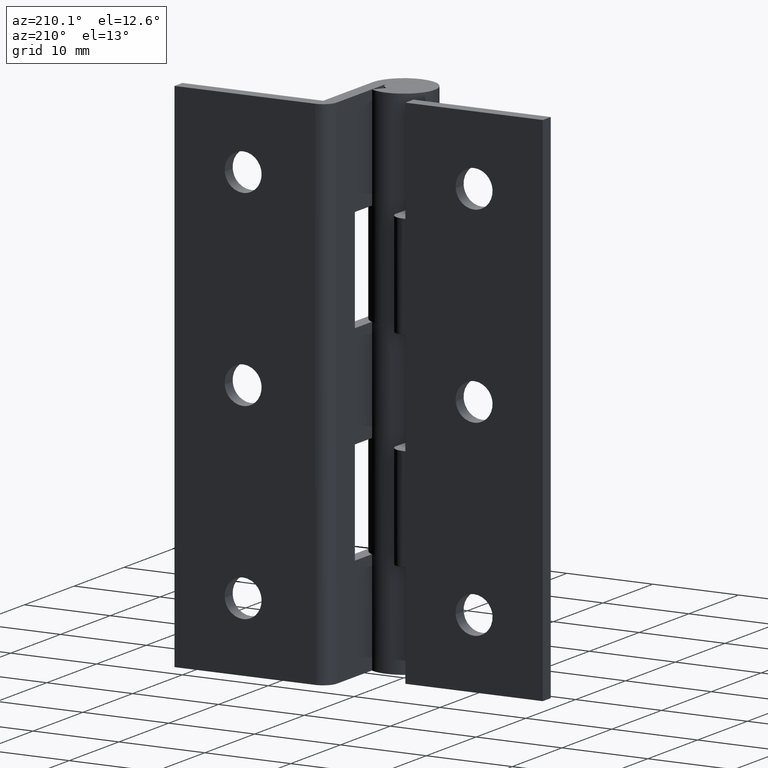
[diagram: clean part render]
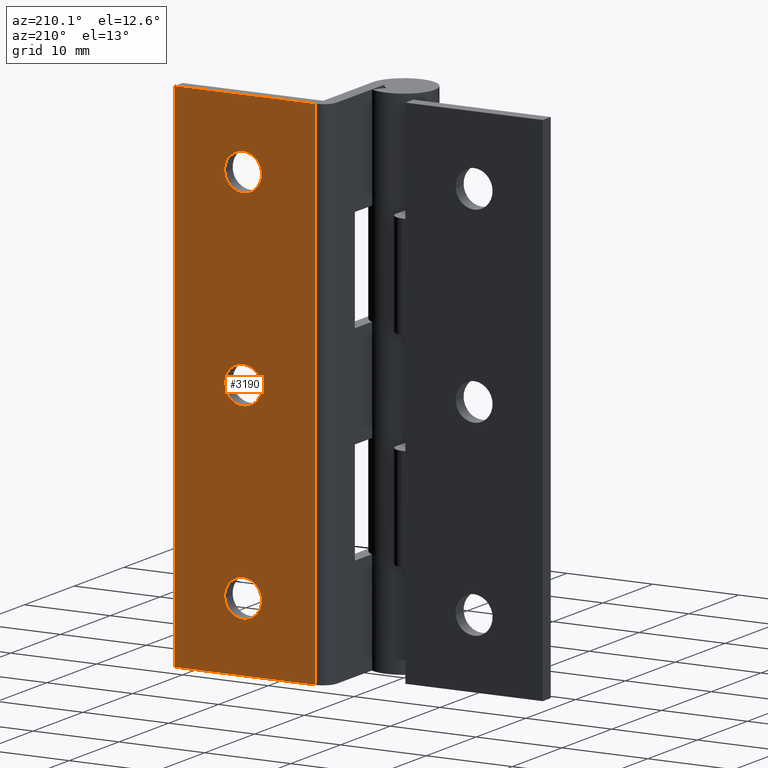
[diagram: same view with one face highlighted and labeled with its STEP entity id]
A machine part, auxiliary view. The second image highlights one B-rep face of the part: STEP entity #3190.
In plain terms, the highlighted face is a freeform B-spline surface patch.
Its self-contained STEP definition (entity closure, byte-faithful):
#1859=CARTESIAN_POINT('',(9.856635732478805,11.599998999999960,52.168687055877513));
#1860=VERTEX_POINT('',#1859);
#1866=CARTESIAN_POINT('',(12.000008000000101,11.599998999999960,54.149999999999999));
#1867=VERTEX_POINT('',#1866);
#1868=CARTESIAN_POINT('',(12.000008000000101,11.599998999999960,54.149999999999999));
#1869=CARTESIAN_POINT('',(10.012568443051496,11.599998999999961,54.150000000000013));
#1870=CARTESIAN_POINT('',(9.856635732478805,11.599998999999961,52.168687055877520));
#1878=(BOUNDED_CURVE()B_SPLINE_CURVE(2,(#1868,#1869,#1870),.UNSPECIFIED.,.F.,.U.)B_SPLINE_CURVE_WITH_KNOTS((3,3),(0.0,0.236331300622746),.UNSPECIFIED.)CURVE()GEOMETRIC_REPRESENTATION_ITEM()RATIONAL_B_SPLINE_CURVE((1.0,0.723120658616937,0.969723356150902))REPRESENTATION_ITEM(''));
#1879=EDGE_CURVE('',#1867,#1860,#1878,.T.);
#1881=CARTESIAN_POINT('',(14.143380267521390,11.599998999999960,51.831312944122487));
#1882=VERTEX_POINT('',#1881);
#1883=CARTESIAN_POINT('',(14.143380267521396,11.599998999999958,51.831312944122494));
#1884=CARTESIAN_POINT('',(14.150008000000096,11.599998999999961,51.915526269870576));
#1885=CARTESIAN_POINT('',(14.150008000000099,11.599998999999960,52.0));
#1886=CARTESIAN_POINT('',(14.150008000000103,11.599998999999960,54.150000000000006));
#1887=CARTESIAN_POINT('',(12.000008000000101,11.599998999999960,54.149999999999999));
#1895=(BOUNDED_CURVE()B_SPLINE_CURVE(2,(#1883,#1884,#1885,#1886,#1887),.UNSPECIFIED.,.F.,.U.)B_SPLINE_CURVE_WITH_KNOTS((3,2,3),(0.736331300622745,0.750000000000000,1.0),.UNSPECIFIED.)CURVE()GEOMETRIC_REPRESENTATION_ITEM()RATIONAL_B_SPLINE_CURVE((0.969723356150901,0.983986122569609,1.0,0.707106781186547,1.0))REPRESENTATION_ITEM(''));
#1896=EDGE_CURVE('',#1882,#1867,#1895,.T.);
#1972=CARTESIAN_POINT('',(12.000008000000101,11.599998999999960,49.850000000000001));
#1973=VERTEX_POINT('',#1972);
#1974=CARTESIAN_POINT('',(12.000008000000101,11.599998999999960,49.850000000000001));
#1975=CARTESIAN_POINT('',(13.987447556948696,11.599998999999958,49.850000000000016));
#1976=CARTESIAN_POINT('',(14.143380267521392,11.599998999999965,51.831312944122487));
#1984=(BOUNDED_CURVE()B_SPLINE_CURVE(2,(#1974,#1975,#1976),.UNSPECIFIED.,.F.,.U.)B_SPLINE_CURVE_WITH_KNOTS((3,3),(0.500000000000000,0.736331300622745),.UNSPECIFIED.)CURVE()GEOMETRIC_REPRESENTATION_ITEM()RATIONAL_B_SPLINE_CURVE((1.0,0.723120658616938,0.969723356150901))REPRESENTATION_ITEM(''));
#1985=EDGE_CURVE('',#1973,#1882,#1984,.T.);
#1987=CARTESIAN_POINT('',(9.856635732478805,11.599998999999961,52.168687055877520));
#1988=CARTESIAN_POINT('',(9.850008000000099,11.599998999999963,52.084473730129439));
#1989=CARTESIAN_POINT('',(9.850008000000100,11.599998999999960,52.0));
#1990=CARTESIAN_POINT('',(9.850008000000100,11.599998999999960,49.850000000000009));
#1991=CARTESIAN_POINT('',(12.000008000000101,11.599998999999960,49.850000000000001));
#1999=(BOUNDED_CURVE()B_SPLINE_CURVE(2,(#1987,#1988,#1989,#1990,#1991),.UNSPECIFIED.,.F.,.U.)B_SPLINE_CURVE_WITH_KNOTS((3,2,3),(0.236331300622746,0.250000000000000,0.500000000000000),.UNSPECIFIED.)CURVE()GEOMETRIC_REPRESENTATION_ITEM()RATIONAL_B_SPLINE_CURVE((0.969723356150902,0.983986122569610,1.0,0.707106781186547,1.0))REPRESENTATION_ITEM(''));
#2000=EDGE_CURVE('',#1860,#1973,#1999,.T.);
#2041=CARTESIAN_POINT('',(9.856635732478807,11.599998999999960,30.168687055877509));
#2042=VERTEX_POINT('',#2041);
#2048=CARTESIAN_POINT('',(12.000008000000101,11.599998999999960,32.149999999999999));
#2049=VERTEX_POINT('',#2048);
#2050=CARTESIAN_POINT('',(12.000008000000101,11.599998999999960,32.149999999999999));
#2051=CARTESIAN_POINT('',(10.012568443051492,11.599998999999960,32.150000000000006));
#2052=CARTESIAN_POINT('',(9.856635732478805,11.599998999999958,30.168687055877509));
#2060=(BOUNDED_CURVE()B_SPLINE_CURVE(2,(#2050,#2051,#2052),.UNSPECIFIED.,.F.,.U.)B_SPLINE_CURVE_WITH_KNOTS((3,3),(0.0,0.236331300622746),.UNSPECIFIED.)CURVE()GEOMETRIC_REPRESENTATION_ITEM()RATIONAL_B_SPLINE_CURVE((1.0,0.723120658616937,0.969723356150903))REPRESENTATION_ITEM(''));
#2061=EDGE_CURVE('',#2049,#2042,#2060,.T.);
#2063=CARTESIAN_POINT('',(14.143380267521390,11.599998999999960,29.831312944122480));
#2064=VERTEX_POINT('',#2063);
#2065=CARTESIAN_POINT('',(14.143380267521392,11.599998999999956,29.831312944122487));
#2066=CARTESIAN_POINT('',(14.150008000000101,11.599998999999956,29.915526269870572));
#2067=CARTESIAN_POINT('',(14.150008000000099,11.599998999999960,30.0));
#2068=CARTESIAN_POINT('',(14.150008000000103,11.599998999999960,32.149999999999999));
#2069=CARTESIAN_POINT('',(12.000008000000101,11.599998999999960,32.149999999999999));
#2077=(BOUNDED_CURVE()B_SPLINE_CURVE(2,(#2065,#2066,#2067,#2068,#2069),.UNSPECIFIED.,.F.,.U.)B_SPLINE_CURVE_WITH_KNOTS((3,2,3),(0.736331300622745,0.750000000000000,1.0),.UNSPECIFIED.)CURVE()GEOMETRIC_REPRESENTATION_ITEM()RATIONAL_B_SPLINE_CURVE((0.969723356150902,0.983986122569610,1.0,0.707106781186547,1.0))REPRESENTATION_ITEM(''));
#2078=EDGE_CURVE('',#2064,#2049,#2077,.T.);
#2154=CARTESIAN_POINT('',(12.000008000000101,11.599998999999960,27.850000000000001));
#2155=VERTEX_POINT('',#2154);
#2156=CARTESIAN_POINT('',(12.000008000000101,11.599998999999960,27.850000000000001));
#2157=CARTESIAN_POINT('',(13.987447556948696,11.599998999999958,27.849999999999998));
#2158=CARTESIAN_POINT('',(14.143380267521392,11.599998999999954,29.831312944122477));
#2166=(BOUNDED_CURVE()B_SPLINE_CURVE(2,(#2156,#2157,#2158),.UNSPECIFIED.,.F.,.U.)B_SPLINE_CURVE_WITH_KNOTS((3,3),(0.500000000000000,0.736331300622745),.UNSPECIFIED.)CURVE()GEOMETRIC_REPRESENTATION_ITEM()RATIONAL_B_SPLINE_CURVE((1.0,0.723120658616938,0.969723356150901))REPRESENTATION_ITEM(''));
#2167=EDGE_CURVE('',#2155,#2064,#2166,.T.);
#2169=CARTESIAN_POINT('',(9.856635732478807,11.599998999999960,30.168687055877513));
#2170=CARTESIAN_POINT('',(9.850008000000099,11.599998999999956,30.084473730129424));
#2171=CARTESIAN_POINT('',(9.850008000000100,11.599998999999960,30.0));
#2172=CARTESIAN_POINT('',(9.850008000000100,11.599998999999960,27.850000000000005));
#2173=CARTESIAN_POINT('',(12.000008000000101,11.599998999999960,27.850000000000001));
#2181=(BOUNDED_CURVE()B_SPLINE_CURVE(2,(#2169,#2170,#2171,#2172,#2173),.UNSPECIFIED.,.F.,.U.)B_SPLINE_CURVE_WITH_KNOTS((3,2,3),(0.236331300622746,0.250000000000000,0.500000000000000),.UNSPECIFIED.)CURVE()GEOMETRIC_REPRESENTATION_ITEM()RATIONAL_B_SPLINE_CURVE((0.969723356150903,0.983986122569611,1.0,0.707106781186547,1.0))REPRESENTATION_ITEM(''));
#2182=EDGE_CURVE('',#2042,#2155,#2181,.T.);
#2223=CARTESIAN_POINT('',(9.856635732478807,11.599998999999960,8.168687055877516));
#2224=VERTEX_POINT('',#2223);
#2230=CARTESIAN_POINT('',(12.000008000000101,11.599998999999960,10.150000000000000));
#2231=VERTEX_POINT('',#2230);
#2232=CARTESIAN_POINT('',(12.000008000000101,11.599998999999960,10.150000000000000));
#2233=CARTESIAN_POINT('',(10.012568443051496,11.599998999999961,10.149999999999999));
#2234=CARTESIAN_POINT('',(9.856635732478807,11.599998999999961,8.168687055877516));
#2242=(BOUNDED_CURVE()B_SPLINE_CURVE(2,(#2232,#2233,#2234),.UNSPECIFIED.,.F.,.U.)B_SPLINE_CURVE_WITH_KNOTS((3,3),(0.0,0.236331300622746),.UNSPECIFIED.)CURVE()GEOMETRIC_REPRESENTATION_ITEM()RATIONAL_B_SPLINE_CURVE((1.0,0.723120658616937,0.969723356150902))REPRESENTATION_ITEM(''));
#2243=EDGE_CURVE('',#2231,#2224,#2242,.T.);
#2245=CARTESIAN_POINT('',(14.143380267521390,11.599998999999960,7.831312944122485));
#2246=VERTEX_POINT('',#2245);
#2247=CARTESIAN_POINT('',(14.143380267521390,11.599998999999958,7.831312944122485));
#2248=CARTESIAN_POINT('',(14.150008000000105,11.599998999999961,7.915526269870572));
#2249=CARTESIAN_POINT('',(14.150008000000099,11.599998999999960,8.0));
#2250=CARTESIAN_POINT('',(14.150008000000103,11.599998999999960,10.149999999999999));
#2251=CARTESIAN_POINT('',(12.000008000000101,11.599998999999960,10.150000000000000));
#2259=(BOUNDED_CURVE()B_SPLINE_CURVE(2,(#2247,#2248,#2249,#2250,#2251),.UNSPECIFIED.,.F.,.U.)B_SPLINE_CURVE_WITH_KNOTS((3,2,3),(0.736331300622746,0.750000000000000,1.0),.UNSPECIFIED.)CURVE()GEOMETRIC_REPRESENTATION_ITEM()RATIONAL_B_SPLINE_CURVE((0.969723356150902,0.983986122569610,1.0,0.707106781186547,1.0))REPRESENTATION_ITEM(''));
#2260=EDGE_CURVE('',#2246,#2231,#2259,.T.);
#2336=CARTESIAN_POINT('',(12.000008000000101,11.599998999999960,5.850000000000001));
#2337=VERTEX_POINT('',#2336);
#2338=CARTESIAN_POINT('',(12.000008000000101,11.599998999999960,5.850000000000001));
#2339=CARTESIAN_POINT('',(13.987447556948696,11.599998999999958,5.850000000000000));
#2340=CARTESIAN_POINT('',(14.143380267521392,11.599998999999954,7.831312944122485));
#2348=(BOUNDED_CURVE()B_SPLINE_CURVE(2,(#2338,#2339,#2340),.UNSPECIFIED.,.F.,.U.)B_SPLINE_CURVE_WITH_KNOTS((3,3),(0.500000000000000,0.736331300622745),.UNSPECIFIED.)CURVE()GEOMETRIC_REPRESENTATION_ITEM()RATIONAL_B_SPLINE_CURVE((1.0,0.723120658616938,0.969723356150901))REPRESENTATION_ITEM(''));
#2349=EDGE_CURVE('',#2337,#2246,#2348,.T.);
#2351=CARTESIAN_POINT('',(9.856635732478807,11.599998999999960,8.168687055877516));
#2352=CARTESIAN_POINT('',(9.850008000000100,11.599998999999961,8.084473730129428));
#2353=CARTESIAN_POINT('',(9.850008000000100,11.599998999999960,8.0));
#2354=CARTESIAN_POINT('',(9.850008000000100,11.599998999999960,5.850000000000001));
#2355=CARTESIAN_POINT('',(12.000008000000101,11.599998999999960,5.850000000000001));
#2363=(BOUNDED_CURVE()B_SPLINE_CURVE(2,(#2351,#2352,#2353,#2354,#2355),.UNSPECIFIED.,.F.,.U.)B_SPLINE_CURVE_WITH_KNOTS((3,2,3),(0.236331300622746,0.250000000000000,0.500000000000000),.UNSPECIFIED.)CURVE()GEOMETRIC_REPRESENTATION_ITEM()RATIONAL_B_SPLINE_CURVE((0.969723356150902,0.983986122569610,1.0,0.707106781186547,1.0))REPRESENTATION_ITEM(''));
#2364=EDGE_CURVE('',#2224,#2337,#2363,.T.);
#2736=CARTESIAN_POINT('',(3.600008000000110,11.599999000000020,60.0));
#2737=VERTEX_POINT('',#2736);
#2753=CARTESIAN_POINT('',(3.600008000000110,11.599999000000020,0.0));
#2754=VERTEX_POINT('',#2753);
#2755=CARTESIAN_POINT('',(3.600008000000110,11.599999000000020,0.0));
#2756=CARTESIAN_POINT('',(3.600008000000110,11.599999000000020,60.0));
#2757=QUASI_UNIFORM_CURVE('',1,(#2755,#2756),.UNSPECIFIED.,.F.,.U.);
#2758=EDGE_CURVE('',#2754,#2737,#2757,.T.);
#2796=CARTESIAN_POINT('',(20.000008000000101,11.599999000000020,0.0));
#2797=VERTEX_POINT('',#2796);
#2798=CARTESIAN_POINT('',(20.000008000000101,11.599999000000020,0.0));
#2799=CARTESIAN_POINT('',(3.600008000000110,11.599999000000020,0.0));
#2800=QUASI_UNIFORM_CURVE('',1,(#2798,#2799),.UNSPECIFIED.,.F.,.U.);
#2801=EDGE_CURVE('',#2797,#2754,#2800,.T.);
#2879=CARTESIAN_POINT('',(20.000008000000101,11.599999000000020,60.0));
#2880=VERTEX_POINT('',#2879);
#2881=CARTESIAN_POINT('',(20.000008000000101,11.599999000000020,60.0));
#2882=CARTESIAN_POINT('',(3.600008000000110,11.599999000000020,60.0));
#2883=QUASI_UNIFORM_CURVE('',1,(#2881,#2882),.UNSPECIFIED.,.F.,.U.);
#2884=EDGE_CURVE('',#2880,#2737,#2883,.T.);
#2971=CARTESIAN_POINT('',(20.000008000000101,11.599999000000020,60.0));
#2972=CARTESIAN_POINT('',(20.000008000000101,11.599999000000020,0.0));
#2973=QUASI_UNIFORM_CURVE('',1,(#2971,#2972),.UNSPECIFIED.,.F.,.U.);
#2974=EDGE_CURVE('',#2880,#2797,#2973,.T.);
#3161=CARTESIAN_POINT('',(2.780828090378812,11.599999000000020,62.996999883708362));
#3162=CARTESIAN_POINT('',(2.780828090378812,11.599999000000020,-2.997001493033767));
#3163=CARTESIAN_POINT('',(20.819187176484270,11.599999000000020,62.996999883708362));
#3164=CARTESIAN_POINT('',(20.819187176484270,11.599999000000020,-2.997001493033767));
#3165=B_SPLINE_SURFACE_WITH_KNOTS('',1,1,((#3161,#3163),(#3162,#3164)),.UNSPECIFIED.,.F.,.F.,.U.,(2,2),(2,2),(0.0,65.994001376742119),(0.0,18.038359086105459),.UNSPECIFIED.);
#3166=ORIENTED_EDGE('',*,*,#2801,.T.);
#3167=ORIENTED_EDGE('',*,*,#2758,.T.);
#3168=ORIENTED_EDGE('',*,*,#2884,.F.);
#3169=ORIENTED_EDGE('',*,*,#2974,.T.);
#3170=EDGE_LOOP('',(#3166,#3167,#3168,#3169));
#3171=FACE_OUTER_BOUND('',#3170,.T.);
#3172=ORIENTED_EDGE('',*,*,#2349,.T.);
#3173=ORIENTED_EDGE('',*,*,#2260,.T.);
#3174=ORIENTED_EDGE('',*,*,#2243,.T.);
#3175=ORIENTED_EDGE('',*,*,#2364,.T.);
#3176=EDGE_LOOP('',(#3172,#3173,#3174,#3175));
#3177=FACE_BOUND('',#3176,.T.);
#3178=ORIENTED_EDGE('',*,*,#2167,.T.);
#3179=ORIENTED_EDGE('',*,*,#2078,.T.);
#3180=ORIENTED_EDGE('',*,*,#2061,.T.);
#3181=ORIENTED_EDGE('',*,*,#2182,.T.);
#3182=EDGE_LOOP('',(#3178,#3179,#3180,#3181));
#3183=FACE_BOUND('',#3182,.T.);
#3184=ORIENTED_EDGE('',*,*,#1985,.T.);
#3185=ORIENTED_EDGE('',*,*,#1896,.T.);
#3186=ORIENTED_EDGE('',*,*,#1879,.T.);
#3187=ORIENTED_EDGE('',*,*,#2000,.T.);
#3188=EDGE_LOOP('',(#3184,#3185,#3186,#3187));
#3189=FACE_BOUND('',#3188,.T.);
#3190=ADVANCED_FACE('',(#3171,#3177,#3183,#3189),#3165,.F.);